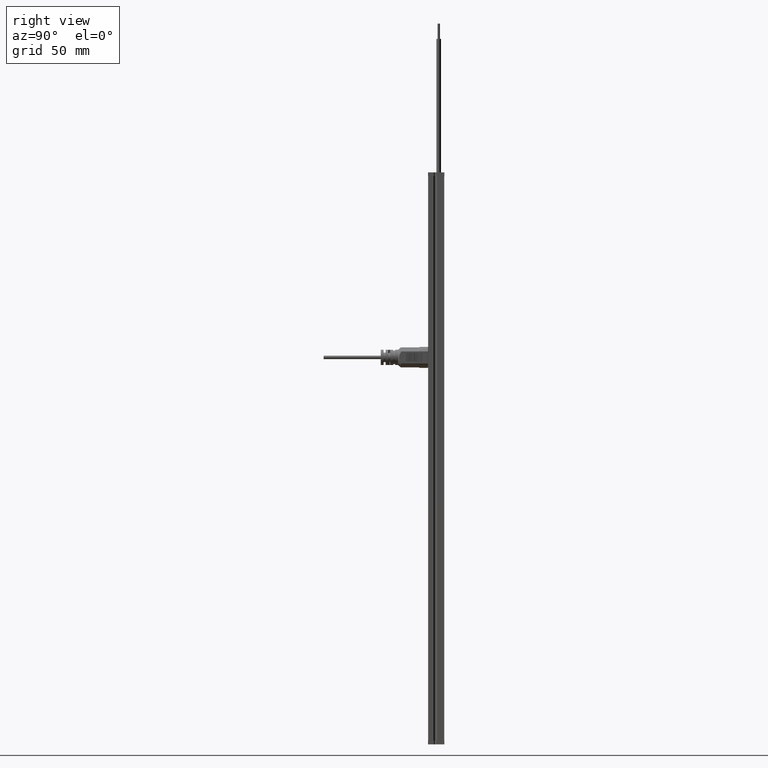
[diagram: clean part render]
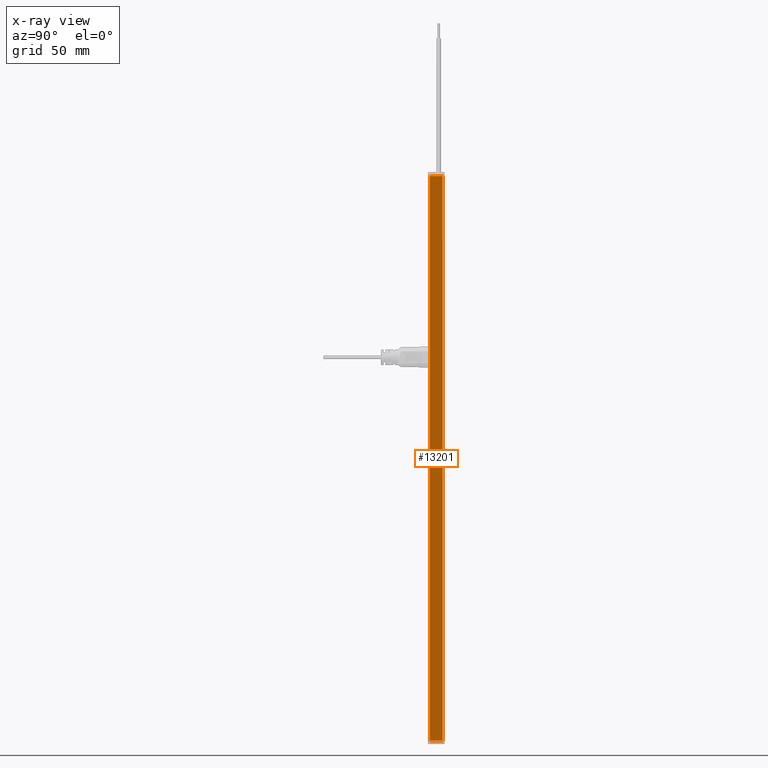
[diagram: x-ray — body ghosted, one internal face saturated and labeled with its STEP entity id]
A machine part, right view, then the same camera in x-ray: the body is ghosted and one INTERNAL B-rep face — a face not visible from any outside direction — is saturated and labeled: STEP entity #13201.
In plain terms, the highlighted planar face has unit normal (1, -0, 0).
Its self-contained STEP definition (entity closure, byte-faithful):
#162 = CARTESIAN_POINT ( 'NONE',  ( -3.600000000000001865, 0.8999999999999986899, 148.0000000000000000 ) ) ;
#232 = ORIENTED_EDGE ( 'NONE', *, *, #7133, .T. ) ;
#883 = CARTESIAN_POINT ( 'NONE',  ( -3.600000000000001421, 7.600000000000000533, 148.0000000000000000 ) ) ;
#978 = CARTESIAN_POINT ( 'NONE',  ( -3.600000000000001865, 0.8999999999999986899, 148.0000000000000000 ) ) ;
#1791 = LINE ( 'NONE', #5044, #10212 ) ;
#2197 = LINE ( 'NONE', #10191, #4056 ) ;
#2346 = EDGE_CURVE ( 'NONE', #8195, #15132, #4859, .T. ) ;
#3020 = DIRECTION ( 'NONE',  ( 1.294569758191646662E-16, 1.000000000000000000, -0.000000000000000000 ) ) ;
#3969 = EDGE_CURVE ( 'NONE', #8604, #15132, #1791, .T. ) ;
#4056 = VECTOR ( 'NONE', #3020, 1000.000000000000000 ) ;
#4434 = PLANE ( 'NONE',  #8288 ) ;
#4774 = DIRECTION ( 'NONE',  ( -0.000000000000000000, -0.000000000000000000, -1.000000000000000000 ) ) ;
#4859 = LINE ( 'NONE', #7579, #9023 ) ;
#5044 = CARTESIAN_POINT ( 'NONE',  ( -3.600000000000001421, 7.600000000000000533, 148.0000000000000000 ) ) ;
#5636 = ORIENTED_EDGE ( 'NONE', *, *, #2346, .T. ) ;
#6631 = CARTESIAN_POINT ( 'NONE',  ( -3.600000000000001421, 7.600000000000000533, 148.0000000000000000 ) ) ;
#7130 = LINE ( 'NONE', #162, #11084 ) ;
#7133 = EDGE_CURVE ( 'NONE', #9737, #8195, #7130, .T. ) ;
#7579 = CARTESIAN_POINT ( 'NONE',  ( -3.600000000000001421, 7.600000000000000533, -148.0000000000000000 ) ) ;
#8195 = VERTEX_POINT ( 'NONE', #9424 ) ;
#8288 = AXIS2_PLACEMENT_3D ( 'NONE', #883, #11711, #15234 ) ;
#8604 = VERTEX_POINT ( 'NONE', #6631 ) ;
#9023 = VECTOR ( 'NONE', #9954, 1000.000000000000000 ) ;
#9424 = CARTESIAN_POINT ( 'NONE',  ( -3.600000000000001865, 0.8999999999999986899, -148.0000000000000000 ) ) ;
#9737 = VERTEX_POINT ( 'NONE', #978 ) ;
#9784 = DIRECTION ( 'NONE',  ( -0.000000000000000000, -0.000000000000000000, -1.000000000000000000 ) ) ;
#9954 = DIRECTION ( 'NONE',  ( 1.294569758191646662E-16, 1.000000000000000000, -0.000000000000000000 ) ) ;
#10112 = EDGE_LOOP ( 'NONE', ( #5636, #12108, #12759, #232 ) ) ;
#10191 = CARTESIAN_POINT ( 'NONE',  ( -3.600000000000001421, 7.600000000000000533, 148.0000000000000000 ) ) ;
#10212 = VECTOR ( 'NONE', #9784, 1000.000000000000000 ) ;
#11084 = VECTOR ( 'NONE', #4774, 1000.000000000000000 ) ;
#11711 = DIRECTION ( 'NONE',  ( -1.000000000000000000, 1.294569758191646662E-16, 0.000000000000000000 ) ) ;
#12108 = ORIENTED_EDGE ( 'NONE', *, *, #3969, .F. ) ;
#12759 = ORIENTED_EDGE ( 'NONE', *, *, #14513, .F. ) ;
#13201 = ADVANCED_FACE ( 'NONE', ( #14171 ), #4434, .F. ) ;
#13889 = CARTESIAN_POINT ( 'NONE',  ( -3.600000000000001421, 7.600000000000000533, -148.0000000000000000 ) ) ;
#14171 = FACE_OUTER_BOUND ( 'NONE', #10112, .T. ) ;
#14513 = EDGE_CURVE ( 'NONE', #9737, #8604, #2197, .T. ) ;
#15132 = VERTEX_POINT ( 'NONE', #13889 ) ;
#15234 = DIRECTION ( 'NONE',  ( -1.294569758191646662E-16, -1.000000000000000000, 0.000000000000000000 ) ) ;